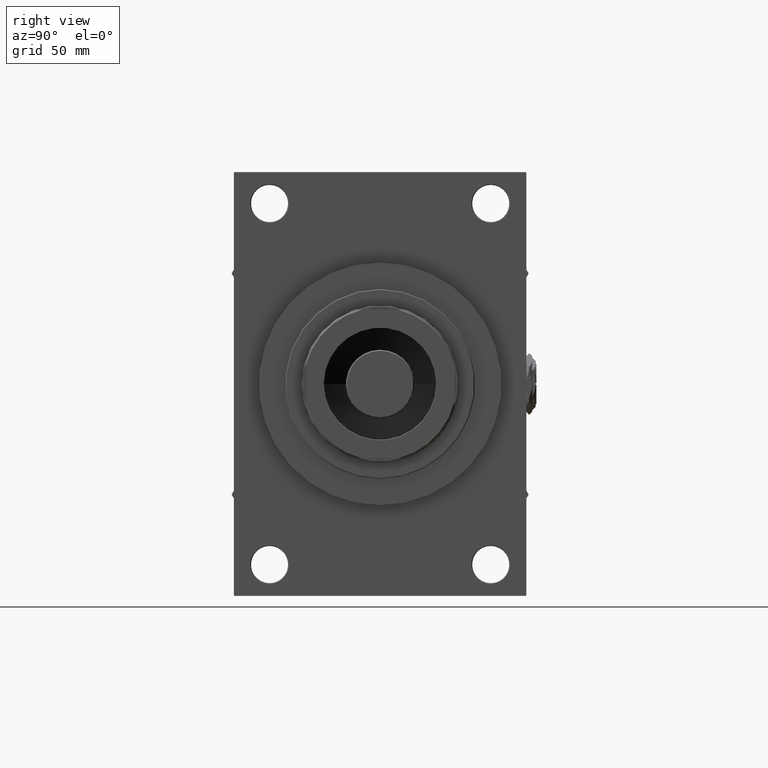
[diagram: clean part render]
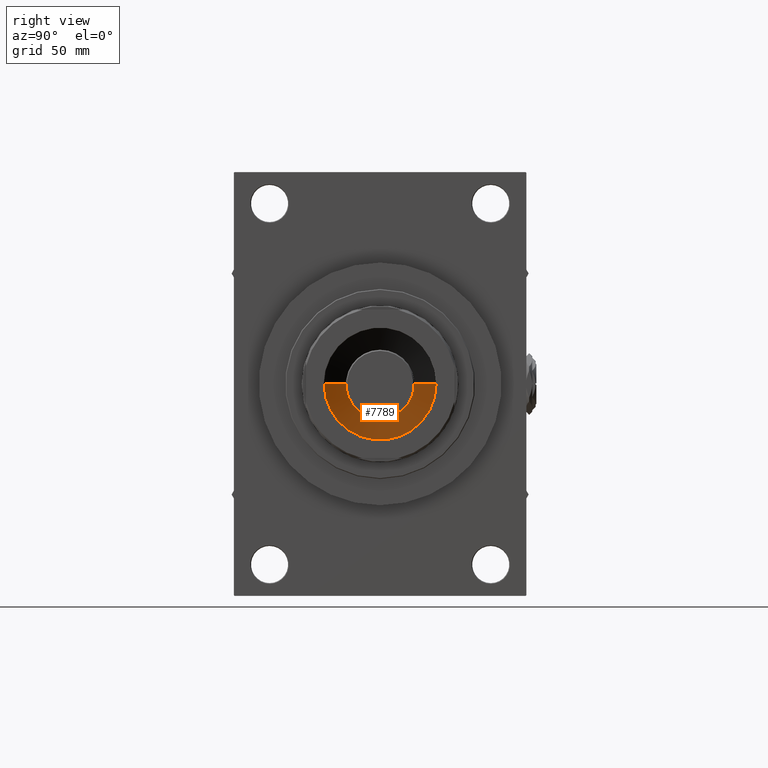
[diagram: same view with one face highlighted and labeled with its STEP entity id]
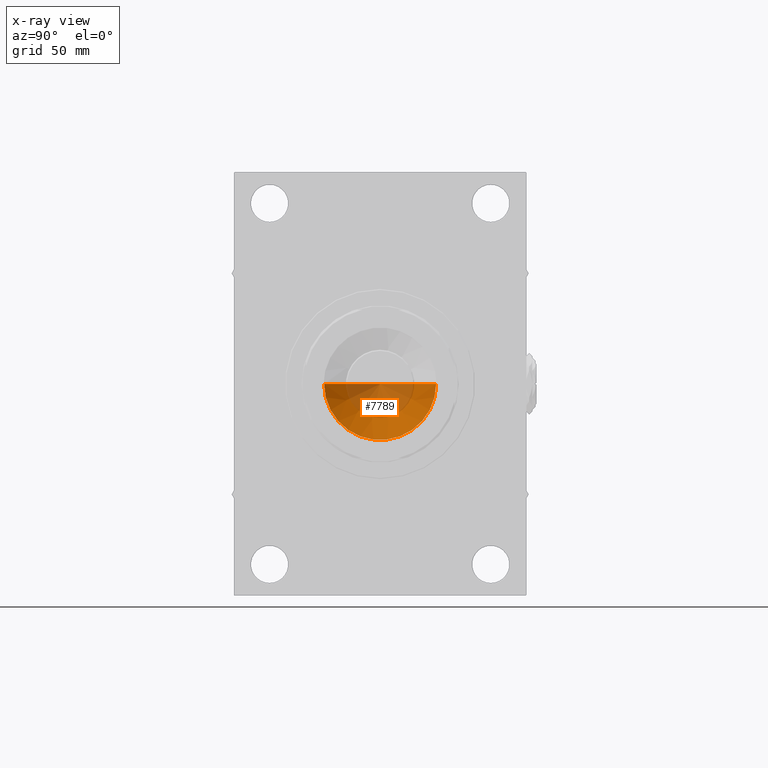
[diagram: x-ray of the same camera — body ghosted, the highlighted face saturated]
A machine part, right view. The second image highlights one B-rep face of the part: STEP entity #7789.
The next image is the same camera in x-ray: the body ghosted, the highlighted face saturated — about 37% of this face is hidden behind the body in this view.
In plain terms, the highlighted conical surface has half-angle 59 deg.
Its self-contained STEP definition (entity closure, byte-faithful):
#3205 = DIRECTION ( 'NONE',  ( -0.8571673007021116675, 1.049727191138617833E-16, 0.5150380749100552658 ) ) ;
#7784 = LINE ( 'NONE', #46479, #14809 ) ;
#7789 = ADVANCED_FACE ( 'NONE', ( #18534 ), #50166, .F. ) ;
#9688 = AXIS2_PLACEMENT_3D ( 'NONE', #14696, #22085, #22572 ) ;
#10657 = DIRECTION ( 'NONE',  ( -0.000000000000000000, -0.000000000000000000, 1.000000000000000000 ) ) ;
#12770 = CARTESIAN_POINT ( 'NONE',  ( 39.24999999999998579, 0.000000000000000000, 104.9999999999999858 ) ) ;
#14696 = CARTESIAN_POINT ( 'NONE',  ( 0.000000000000000000, 0.000000000000000000, 104.9999999999999858 ) ) ;
#14809 = VECTOR ( 'NONE', #3205, 1000.000000000000000 ) ;
#17779 = CIRCLE ( 'NONE', #9688, 39.24999999999998579 ) ;
#18534 = FACE_OUTER_BOUND ( 'NONE', #18912, .T. ) ;
#18912 = EDGE_LOOP ( 'NONE', ( #30516, #31125, #44057 ) ) ;
#21760 = EDGE_CURVE ( 'NONE', #45934, #32659, #23799, .T. ) ;
#22085 = DIRECTION ( 'NONE',  ( -0.000000000000000000, -0.000000000000000000, 1.000000000000000000 ) ) ;
#22572 = DIRECTION ( 'NONE',  ( 1.000000000000000000, 0.000000000000000000, 0.000000000000000000 ) ) ;
#23684 = VECTOR ( 'NONE', #27609, 1000.000000000000000 ) ;
#23799 = LINE ( 'NONE', #47225, #23684 ) ;
#26984 = EDGE_CURVE ( 'NONE', #45934, #27686, #7784, .T. ) ;
#27609 = DIRECTION ( 'NONE',  ( 0.8571673007021116675, 0.000000000000000000, 0.5150380749100552658 ) ) ;
#27686 = VERTEX_POINT ( 'NONE', #34638 ) ;
#30516 = ORIENTED_EDGE ( 'NONE', *, *, #26984, .F. ) ;
#31125 = ORIENTED_EDGE ( 'NONE', *, *, #21760, .T. ) ;
#32228 = CARTESIAN_POINT ( 'NONE',  ( -3.318838890392715616E-14, 0.000000000000000000, 81.41622070316820725 ) ) ;
#32659 = VERTEX_POINT ( 'NONE', #12770 ) ;
#34638 = CARTESIAN_POINT ( 'NONE',  ( -39.24999999999998579, 4.806738686653360087E-15, 104.9999999999999858 ) ) ;
#37896 = DIRECTION ( 'NONE',  ( 1.000000000000000000, 0.000000000000000000, 0.000000000000000000 ) ) ;
#42844 = AXIS2_PLACEMENT_3D ( 'NONE', #45538, #10657, #37896 ) ;
#44057 = ORIENTED_EDGE ( 'NONE', *, *, #47140, .T. ) ;
#45538 = CARTESIAN_POINT ( 'NONE',  ( 0.000000000000000000, 0.000000000000000000, 104.9999999999999858 ) ) ;
#45934 = VERTEX_POINT ( 'NONE', #32228 ) ;
#46479 = CARTESIAN_POINT ( 'NONE',  ( -39.24999999999998579, 4.806738686653360087E-15, 104.9999999999999858 ) ) ;
#47140 = EDGE_CURVE ( 'NONE', #32659, #27686, #17779, .T. ) ;
#47225 = CARTESIAN_POINT ( 'NONE',  ( 39.24999999999998579, 0.000000000000000000, 104.9999999999999858 ) ) ;
#50166 = CONICAL_SURFACE ( 'NONE', #42844, 39.24999999999998579, 1.029744258676653201 ) ;